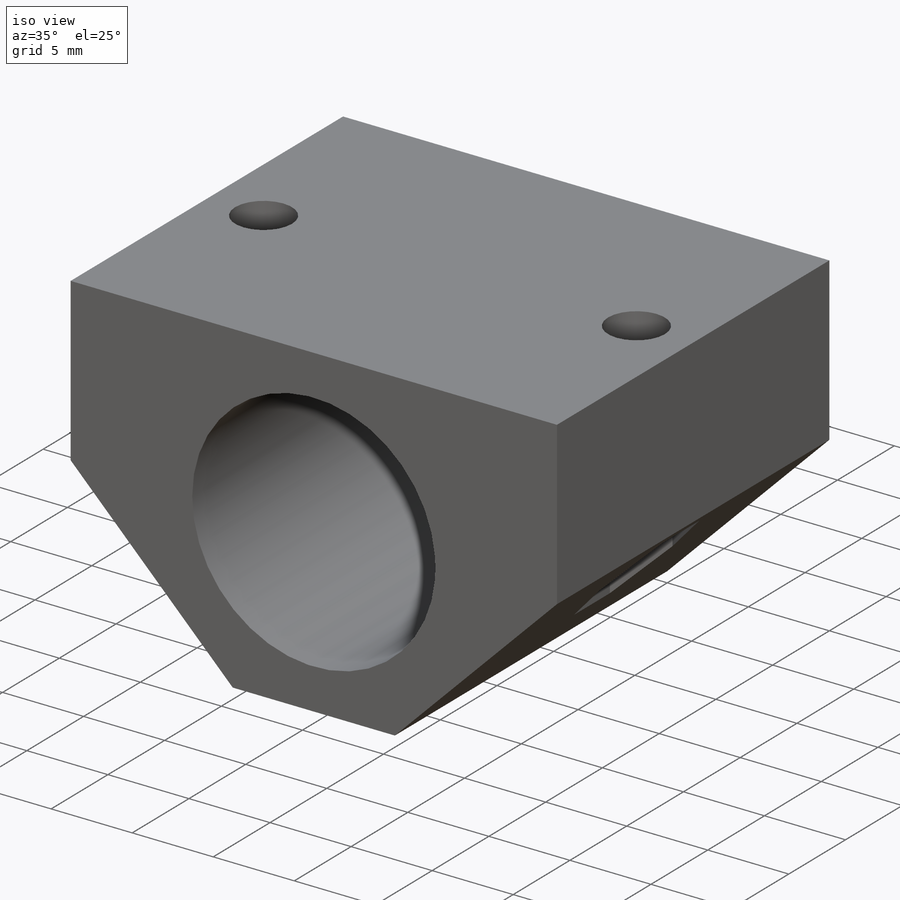
[diagram: iso view]
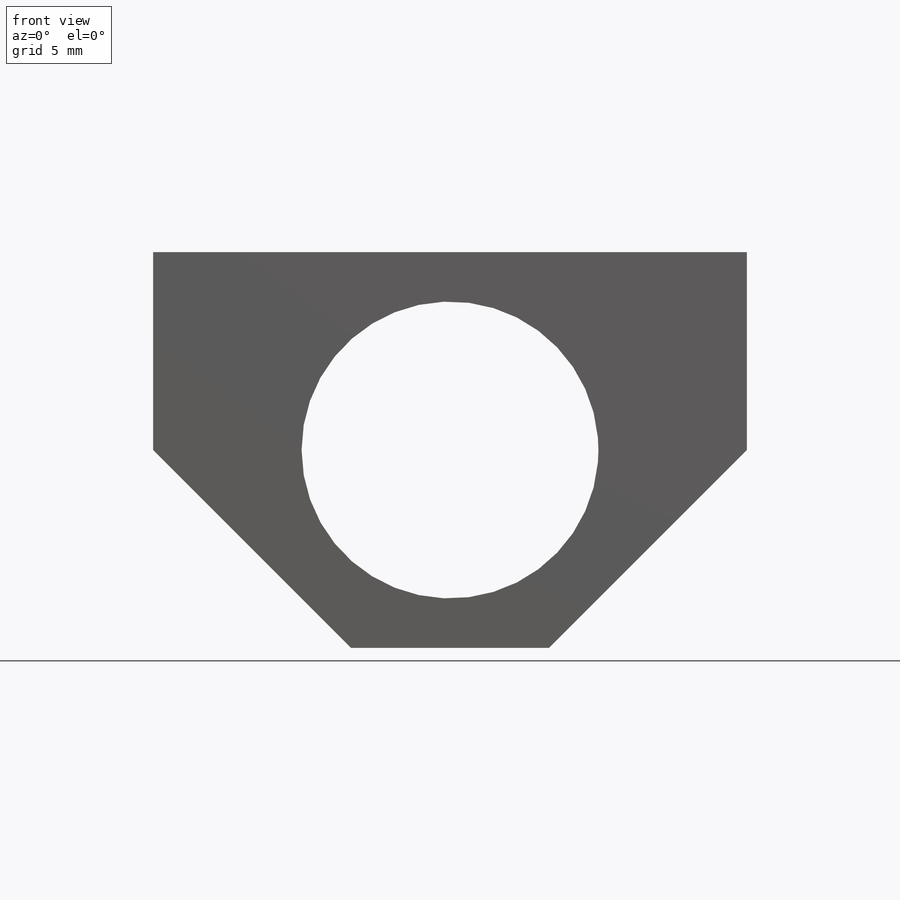
[diagram: front view]
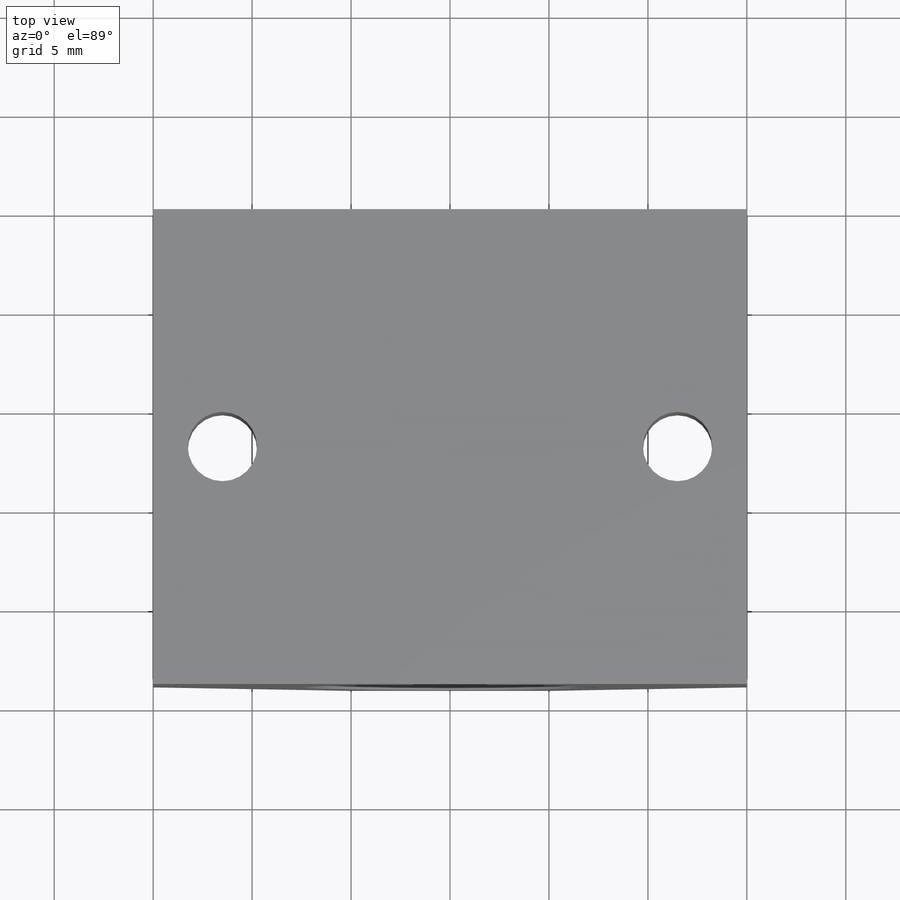
[diagram: top view]
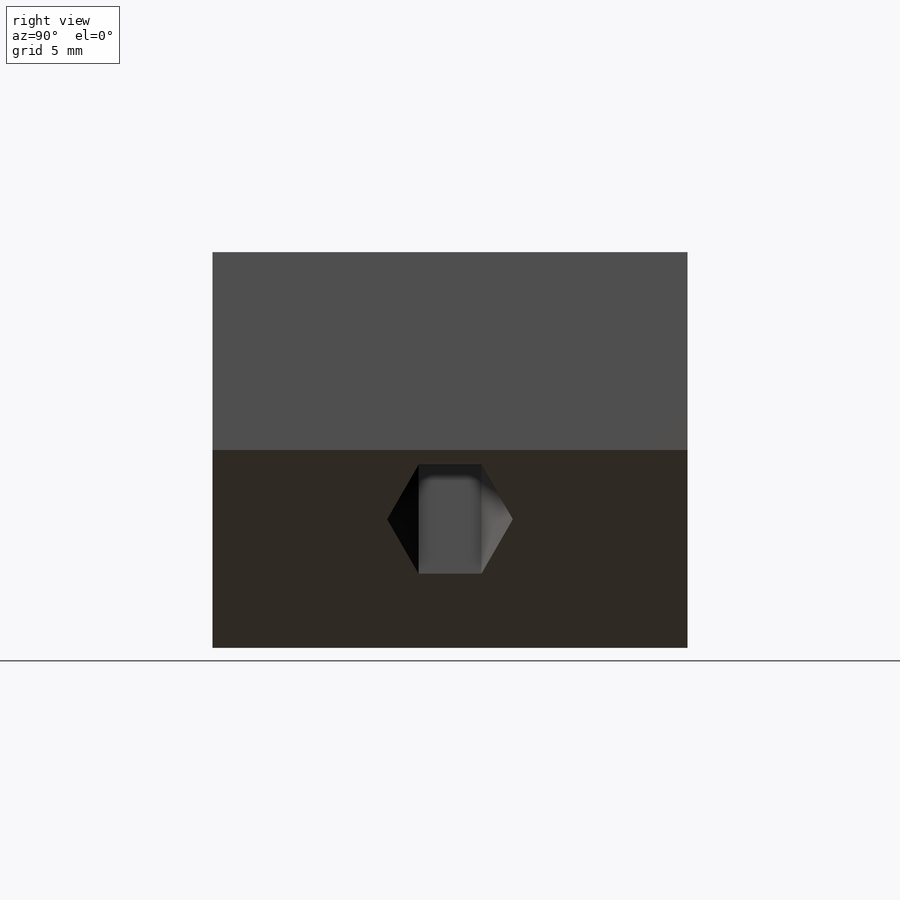
[diagram: right view]
SOLIDWORKS PART (.sldprt)
format: sldprt  version: not decoded by parser v0  size: 201,216 bytes
history: native  units: mm
features: sketch x3, cut_extrude x2, material x1, extrude x1 (+11 scaffold rows collapsed)
feature tree (18):
  scaffold x11  (default folders/planes/origin — collapsed)
  material  "ABS PC"
  sketch  "Sketch1"  dims[c1.D5=~12.028858mm c1.D6=15.0mm c1.D1=30.0mm c1.D2=10.0mm c1.D3=10.0mm c1.D4=10.0mm c2.D5=15.0mm c2.D7=10.0mm]
  extrude  "Boss-Extrude1"  Depth=24mm
  sketch  "Sketch2"  dims[c1.D1=3.5mm c1.D3=3.5mm c1.D2=12.0mm c2.D3=3.5mm c2.D4=3.5mm]
  cut_extrude  "Cut-Extrude1"  Depth=24mm
  sketch  "Sketch4"  dims[D1=5.5mm]
  cut_extrude  "Cut-Extrude2"  Depth=7mm
decode coverage: 6 of 6 modeling features carry decoded parameters
note: ~ marks probable driven/reference dimensions
note: suppression state not decoded; provenance and decode notes live in map.json
